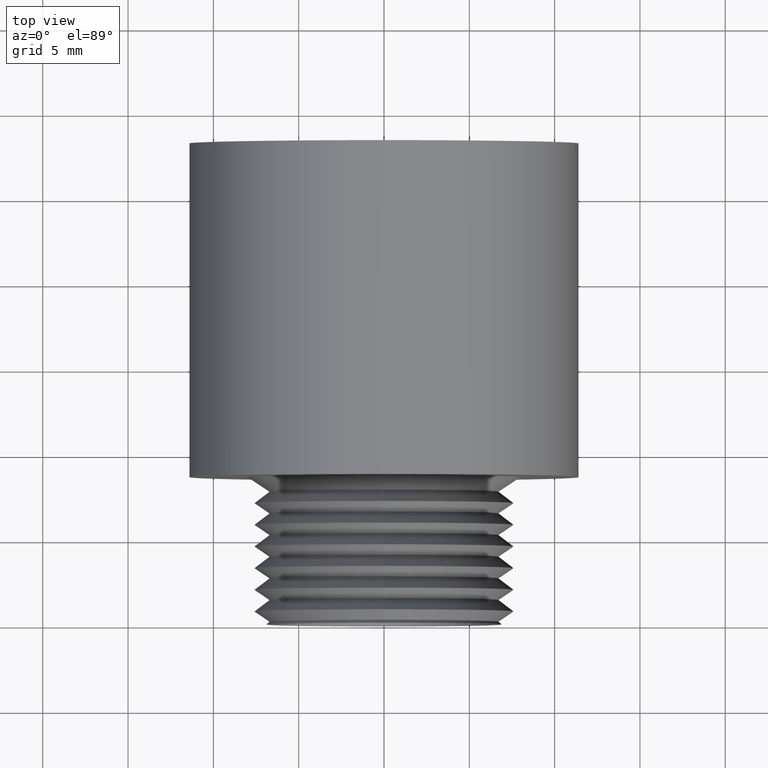
[diagram: clean part render]
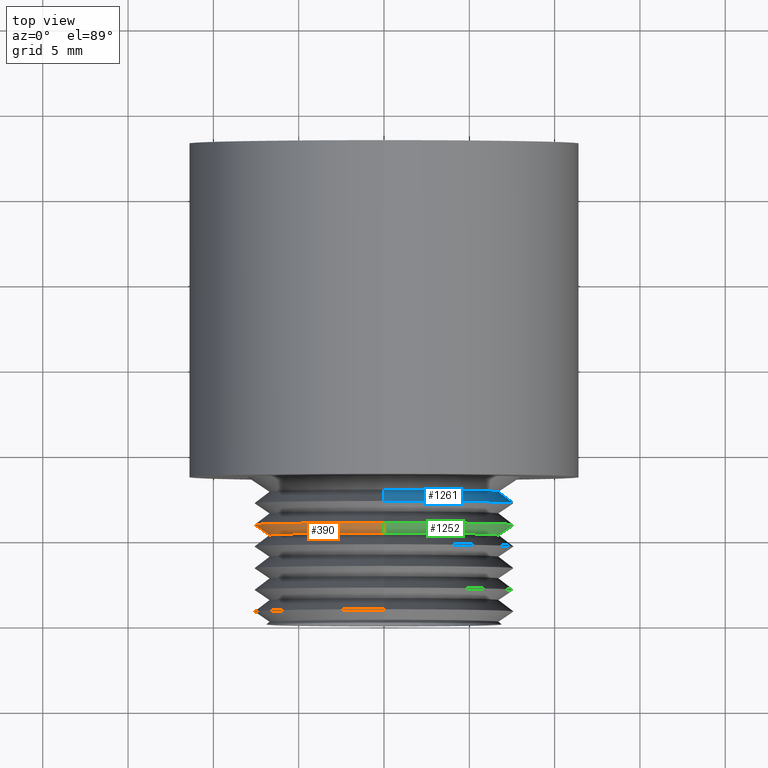
[diagram: same view with three faces highlighted in distinct colors, each labeled with its STEP entity id]
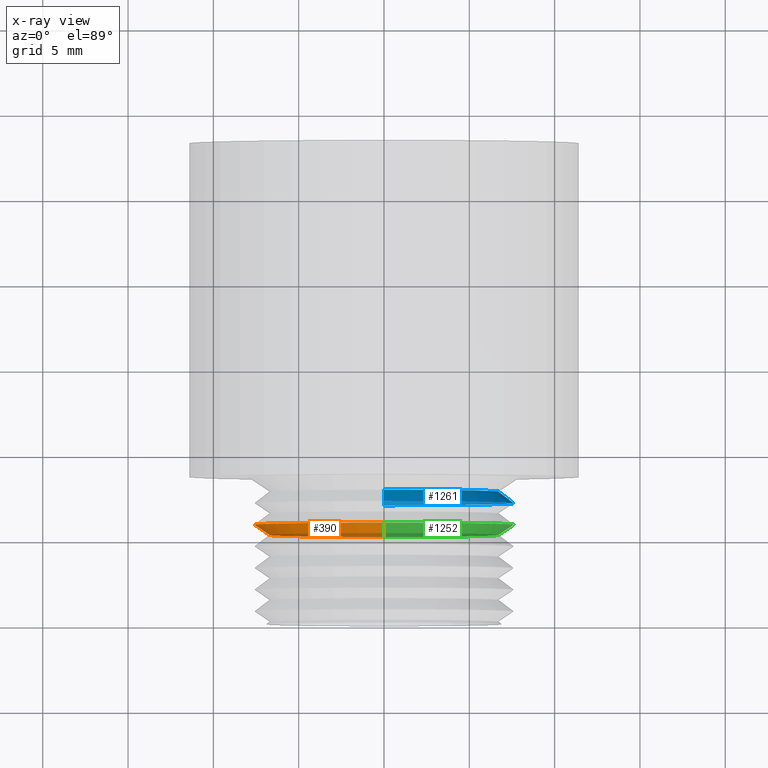
[diagram: x-ray of the same camera — body ghosted, the three highlighted faces saturated]
A machine part, top view with three faces highlighted in distinct colors.
The next image is the same camera in x-ray (body ghosted, the three faces saturated) — at least one of them is partly hidden behind the body in this view.
Their STEP definitions:

[orange] entity #390 — the highlighted conical surface has half-angle 56.5 deg.
#33 = EDGE_CURVE ( 'NONE', #1227, #1128, #550, .T. ) ;
#390 = ADVANCED_FACE ( 'NONE', ( #1422 ), #1417, .T. ) ;
#391 = EDGE_LOOP ( 'NONE', ( #392, #393, #394, #395 ) ) ;
#392 = ORIENTED_EDGE ( 'NONE', *, *, #33, .F. ) ;
#393 = ORIENTED_EDGE ( 'NONE', *, *, #1083, .F. ) ;
#394 = ORIENTED_EDGE ( 'NONE', *, *, #1147, .T. ) ;
#395 = ORIENTED_EDGE ( 'NONE', *, *, #1131, .F. ) ;
#547 = DIRECTION ( 'NONE',  ( 1.021215602848915400E-016, 0.5519369853120598100, -0.8338858220671671000 ) ) ;
#548 = VECTOR ( 'NONE', #547, 39.37007874015748100 ) ;
#549 = CARTESIAN_POINT ( 'NONE',  ( 3.234300388511827800E-017, 0.2063104676866713300, -0.2641006689245971600 ) ) ;
#550 = LINE ( 'NONE', #549, #548 ) ;
#1083 = EDGE_CURVE ( 'NONE', #1226, #1227, #1556, .T. ) ;
#1128 = VERTEX_POINT ( 'NONE', #1661 ) ;
#1131 = EDGE_CURVE ( 'NONE', #1128, #1148, #1660, .T. ) ;
#1147 = EDGE_CURVE ( 'NONE', #1226, #1148, #1692, .T. ) ;
#1148 = VERTEX_POINT ( 'NONE', #1688 ) ;
#1226 = VERTEX_POINT ( 'NONE', #1850 ) ;
#1227 = VERTEX_POINT ( 'NONE', #1845 ) ;
#1412 = DIRECTION ( 'NONE',  ( 0.0000000000000000000, 0.0000000000000000000, 1.000000000000000000 ) ) ;
#1413 = DIRECTION ( 'NONE',  ( 0.0000000000000000000, 1.000000000000000000, 0.0000000000000000000 ) ) ;
#1414 = CARTESIAN_POINT ( 'NONE',  ( 0.0000000000000000000, 0.2063104676866713300, 0.0000000000000000000 ) ) ;
#1415 = AXIS2_PLACEMENT_3D ( 'NONE', #1414, #1413, #1412 ) ;
#1417 = CONICAL_SURFACE ( 'NONE', #1415, 0.2641006689245971600, 0.9861110273767942400 ) ;
#1422 = FACE_OUTER_BOUND ( 'NONE', #391, .T. ) ;
#1556 = CIRCLE ( 'NONE', #1612, 0.2641006689245971600 ) ;
#1609 = DIRECTION ( 'NONE',  ( 0.0000000000000000000, 0.0000000000000000000, -1.000000000000000000 ) ) ;
#1610 = DIRECTION ( 'NONE',  ( -0.0000000000000000000, -1.000000000000000000, -0.0000000000000000000 ) ) ;
#1611 = CARTESIAN_POINT ( 'NONE',  ( 0.0000000000000000000, 0.2063104676866713300, 0.0000000000000000000 ) ) ;
#1612 = AXIS2_PLACEMENT_3D ( 'NONE', #1611, #1610, #1609 ) ;
#1656 = DIRECTION ( 'NONE',  ( 0.0000000000000000000, 0.0000000000000000000, 1.000000000000000000 ) ) ;
#1657 = DIRECTION ( 'NONE',  ( 0.0000000000000000000, 1.000000000000000000, 0.0000000000000000000 ) ) ;
#1658 = CARTESIAN_POINT ( 'NONE',  ( 0.0000000000000000000, 0.2299180986532959300, 0.0000000000000000000 ) ) ;
#1659 = AXIS2_PLACEMENT_3D ( 'NONE', #1658, #1657, #1656 ) ;
#1660 = CIRCLE ( 'NONE', #1659, 0.2997679086268464400 ) ;
#1661 = CARTESIAN_POINT ( 'NONE',  ( 0.0000000000000000000, 0.2299180986532959300, -0.2997679086268463800 ) ) ;
#1688 = CARTESIAN_POINT ( 'NONE',  ( 3.671098097869636100E-017, 0.2299180986532959300, 0.2997679086268463800 ) ) ;
#1689 = DIRECTION ( 'NONE',  ( 0.0000000000000000000, 0.5519369853120598100, 0.8338858220671671000 ) ) ;
#1690 = VECTOR ( 'NONE', #1689, 39.37007874015748100 ) ;
#1691 = CARTESIAN_POINT ( 'NONE',  ( 0.0000000000000000000, 0.2063104676866713300, 0.2641006689245971600 ) ) ;
#1692 = LINE ( 'NONE', #1691, #1690 ) ;
#1845 = CARTESIAN_POINT ( 'NONE',  ( 0.0000000000000000000, 0.2063104676866713300, -0.2641006689245971600 ) ) ;
#1850 = CARTESIAN_POINT ( 'NONE',  ( 3.452699243190732300E-017, 0.2063104676866713300, 0.2641006689245971600 ) ) ;

[blue] entity #1261 — the highlighted conical surface has half-angle 53.5 deg.
#8 = VERTEX_POINT ( 'NONE', #534 ) ;
#11 = EDGE_CURVE ( 'NONE', #14, #8, #529, .T. ) ;
#14 = VERTEX_POINT ( 'NONE', #522 ) ;
#15 = VERTEX_POINT ( 'NONE', #517 ) ;
#21 = VERTEX_POINT ( 'NONE', #512 ) ;
#24 = EDGE_CURVE ( 'NONE', #15, #21, #510, .T. ) ;
#334 = ORIENTED_EDGE ( 'NONE', *, *, #24, .T. ) ;
#335 = ORIENTED_EDGE ( 'NONE', *, *, #336, .F. ) ;
#336 = EDGE_CURVE ( 'NONE', #14, #21, #1308, .T. ) ;
#359 = EDGE_CURVE ( 'NONE', #8, #15, #1381, .T. ) ;
#506 = DIRECTION ( 'NONE',  ( 0.0000000000000000000, 0.0000000000000000000, 1.000000000000000000 ) ) ;
#507 = DIRECTION ( 'NONE',  ( 0.0000000000000000000, 1.000000000000000000, 0.0000000000000000000 ) ) ;
#508 = CARTESIAN_POINT ( 'NONE',  ( 0.0000000000000000000, 0.2799180986532959800, 0.0000000000000000000 ) ) ;
#509 = AXIS2_PLACEMENT_3D ( 'NONE', #508, #507, #506 ) ;
#510 = CIRCLE ( 'NONE', #509, 0.2997679086268464400 ) ;
#512 = CARTESIAN_POINT ( 'NONE',  ( 0.0000000000000000000, 0.2799180986532959800, -0.2997679086268463800 ) ) ;
#517 = CARTESIAN_POINT ( 'NONE',  ( 3.671098097869636100E-017, 0.2799180986532959800, 0.2997679086268463800 ) ) ;
#522 = CARTESIAN_POINT ( 'NONE',  ( 0.0000000000000000000, 0.3063104676866713600, -0.2641006689245971600 ) ) ;
#525 = DIRECTION ( 'NONE',  ( 0.0000000000000000000, 0.0000000000000000000, -1.000000000000000000 ) ) ;
#526 = DIRECTION ( 'NONE',  ( -0.0000000000000000000, -1.000000000000000000, -0.0000000000000000000 ) ) ;
#527 = CARTESIAN_POINT ( 'NONE',  ( 0.0000000000000000000, 0.3063104676866713600, 0.0000000000000000000 ) ) ;
#528 = AXIS2_PLACEMENT_3D ( 'NONE', #527, #526, #525 ) ;
#529 = CIRCLE ( 'NONE', #528, 0.2641006689245971600 ) ;
#534 = CARTESIAN_POINT ( 'NONE',  ( 3.452699243190732300E-017, 0.3063104676866713600, 0.2641006689245971600 ) ) ;
#1228 = ORIENTED_EDGE ( 'NONE', *, *, #359, .T. ) ;
#1230 = ORIENTED_EDGE ( 'NONE', *, *, #11, .T. ) ;
#1248 = EDGE_LOOP ( 'NONE', ( #1230, #1228, #334, #335 ) ) ;
#1261 = ADVANCED_FACE ( 'NONE', ( #1908 ), #1903, .T. ) ;
#1305 = DIRECTION ( 'NONE',  ( 0.0000000000000000000, -0.5948227867513454800, -0.8038568606172141800 ) ) ;
#1306 = VECTOR ( 'NONE', #1305, 39.37007874015748900 ) ;
#1307 = CARTESIAN_POINT ( 'NONE',  ( 0.0000000000000000000, 0.2700032405425553700, -0.3131670703467500600 ) ) ;
#1308 = LINE ( 'NONE', #1307, #1306 ) ;
#1378 = DIRECTION ( 'NONE',  ( 9.844407313275114700E-017, -0.5948227867513454800, 0.8038568606172141800 ) ) ;
#1379 = VECTOR ( 'NONE', #1378, 39.37007874015748900 ) ;
#1380 = CARTESIAN_POINT ( 'NONE',  ( 3.835190502985014500E-017, 0.2700032405425553700, 0.3131670703467500600 ) ) ;
#1381 = LINE ( 'NONE', #1380, #1379 ) ;
#1899 = DIRECTION ( 'NONE',  ( 0.0000000000000000000, 0.0000000000000000000, -1.000000000000000000 ) ) ;
#1900 = DIRECTION ( 'NONE',  ( -0.0000000000000000000, -1.000000000000000000, -0.0000000000000000000 ) ) ;
#1901 = CARTESIAN_POINT ( 'NONE',  ( 0.0000000000000000000, 0.2700032405425553700, 0.0000000000000000000 ) ) ;
#1902 = AXIS2_PLACEMENT_3D ( 'NONE', #1901, #1900, #1899 ) ;
#1903 = CONICAL_SURFACE ( 'NONE', #1902, 0.3131670703467500600, 0.9337511498169610600 ) ;
#1908 = FACE_OUTER_BOUND ( 'NONE', #1248, .T. ) ;

[green] entity #1252 — the highlighted conical surface has half-angle 56.5 deg.
#33 = EDGE_CURVE ( 'NONE', #1227, #1128, #550, .T. ) ;
#547 = DIRECTION ( 'NONE',  ( 1.021215602848915400E-016, 0.5519369853120598100, -0.8338858220671671000 ) ) ;
#548 = VECTOR ( 'NONE', #547, 39.37007874015748100 ) ;
#549 = CARTESIAN_POINT ( 'NONE',  ( 3.234300388511827800E-017, 0.2063104676866713300, -0.2641006689245971600 ) ) ;
#550 = LINE ( 'NONE', #549, #548 ) ;
#1128 = VERTEX_POINT ( 'NONE', #1661 ) ;
#1144 = EDGE_CURVE ( 'NONE', #1148, #1128, #1701, .T. ) ;
#1145 = ORIENTED_EDGE ( 'NONE', *, *, #1144, .F. ) ;
#1146 = ORIENTED_EDGE ( 'NONE', *, *, #1147, .F. ) ;
#1147 = EDGE_CURVE ( 'NONE', #1226, #1148, #1692, .T. ) ;
#1148 = VERTEX_POINT ( 'NONE', #1688 ) ;
#1226 = VERTEX_POINT ( 'NONE', #1850 ) ;
#1227 = VERTEX_POINT ( 'NONE', #1845 ) ;
#1246 = ORIENTED_EDGE ( 'NONE', *, *, #33, .T. ) ;
#1247 = EDGE_CURVE ( 'NONE', #1227, #1226, #1870, .T. ) ;
#1251 = ORIENTED_EDGE ( 'NONE', *, *, #1247, .F. ) ;
#1252 = ADVANCED_FACE ( 'NONE', ( #1926 ), #1925, .T. ) ;
#1255 = EDGE_LOOP ( 'NONE', ( #1251, #1246, #1145, #1146 ) ) ;
#1661 = CARTESIAN_POINT ( 'NONE',  ( 0.0000000000000000000, 0.2299180986532959300, -0.2997679086268463800 ) ) ;
#1688 = CARTESIAN_POINT ( 'NONE',  ( 3.671098097869636100E-017, 0.2299180986532959300, 0.2997679086268463800 ) ) ;
#1689 = DIRECTION ( 'NONE',  ( 0.0000000000000000000, 0.5519369853120598100, 0.8338858220671671000 ) ) ;
#1690 = VECTOR ( 'NONE', #1689, 39.37007874015748100 ) ;
#1691 = CARTESIAN_POINT ( 'NONE',  ( 0.0000000000000000000, 0.2063104676866713300, 0.2641006689245971600 ) ) ;
#1692 = LINE ( 'NONE', #1691, #1690 ) ;
#1693 = DIRECTION ( 'NONE',  ( 0.0000000000000000000, 0.0000000000000000000, 1.000000000000000000 ) ) ;
#1694 = DIRECTION ( 'NONE',  ( 0.0000000000000000000, 1.000000000000000000, 0.0000000000000000000 ) ) ;
#1695 = CARTESIAN_POINT ( 'NONE',  ( 0.0000000000000000000, 0.2299180986532959300, 0.0000000000000000000 ) ) ;
#1696 = AXIS2_PLACEMENT_3D ( 'NONE', #1695, #1694, #1693 ) ;
#1701 = CIRCLE ( 'NONE', #1696, 0.2997679086268464400 ) ;
#1845 = CARTESIAN_POINT ( 'NONE',  ( 0.0000000000000000000, 0.2063104676866713300, -0.2641006689245971600 ) ) ;
#1850 = CARTESIAN_POINT ( 'NONE',  ( 3.452699243190732300E-017, 0.2063104676866713300, 0.2641006689245971600 ) ) ;
#1866 = DIRECTION ( 'NONE',  ( 0.0000000000000000000, 0.0000000000000000000, -1.000000000000000000 ) ) ;
#1867 = DIRECTION ( 'NONE',  ( -0.0000000000000000000, -1.000000000000000000, -0.0000000000000000000 ) ) ;
#1868 = CARTESIAN_POINT ( 'NONE',  ( 0.0000000000000000000, 0.2063104676866713300, 0.0000000000000000000 ) ) ;
#1869 = AXIS2_PLACEMENT_3D ( 'NONE', #1868, #1867, #1866 ) ;
#1870 = CIRCLE ( 'NONE', #1869, 0.2641006689245971600 ) ;
#1920 = DIRECTION ( 'NONE',  ( 0.0000000000000000000, 0.0000000000000000000, 1.000000000000000000 ) ) ;
#1921 = DIRECTION ( 'NONE',  ( 0.0000000000000000000, 1.000000000000000000, 0.0000000000000000000 ) ) ;
#1922 = CARTESIAN_POINT ( 'NONE',  ( 0.0000000000000000000, 0.2063104676866713300, 0.0000000000000000000 ) ) ;
#1923 = AXIS2_PLACEMENT_3D ( 'NONE', #1922, #1921, #1920 ) ;
#1925 = CONICAL_SURFACE ( 'NONE', #1923, 0.2641006689245971600, 0.9861110273767942400 ) ;
#1926 = FACE_OUTER_BOUND ( 'NONE', #1255, .T. ) ;